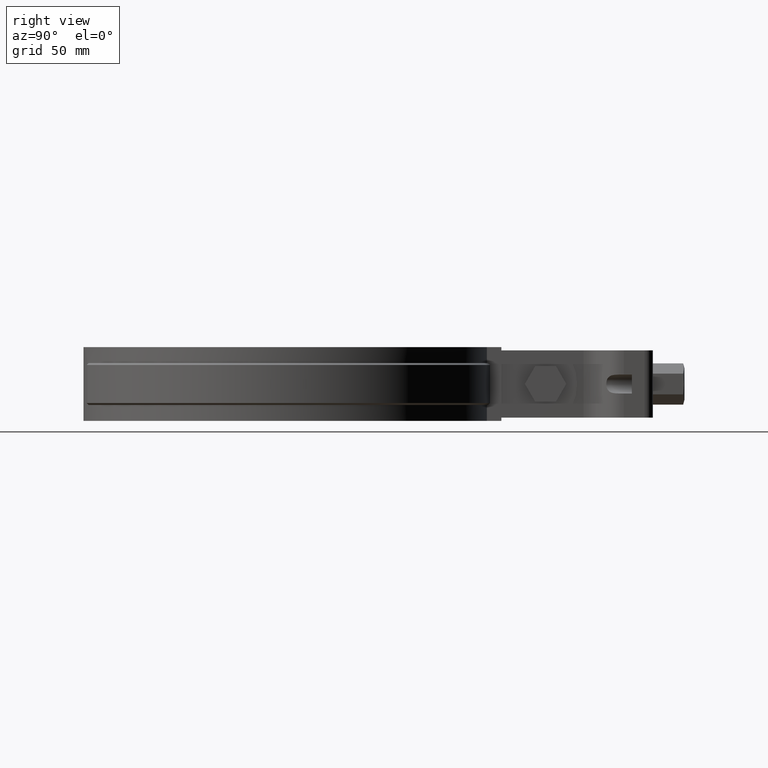
[diagram: clean part render]
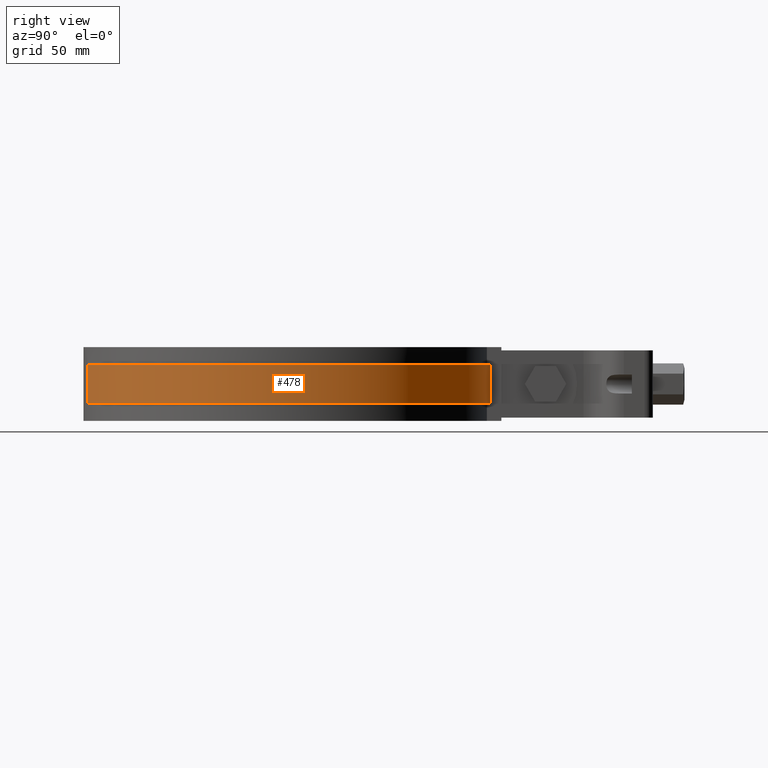
[diagram: same view with one face highlighted and labeled with its STEP entity id]
A machine part, right view. The second image highlights one B-rep face of the part: STEP entity #478.
In plain terms, the highlighted cylindrical surface (partial cylindrical patch) has radius 97.5 mm, axis along (0, 0, -1).
Its self-contained STEP definition (entity closure, byte-faithful):
#478 = ADVANCED_FACE( '', ( #854 ), #855, .T. );
#854 = FACE_OUTER_BOUND( '', #1989, .T. );
#855 = CYLINDRICAL_SURFACE( '', #1990, 97.5000000000000 );
#1989 = EDGE_LOOP( '', ( #4845, #4846, #4847, #4848 ) );
#1990 = AXIS2_PLACEMENT_3D( '', #4849, #4850, #4851 );
#4845 = ORIENTED_EDGE( '', *, *, #5382, .T. );
#4846 = ORIENTED_EDGE( '', *, *, #5398, .T. );
#4847 = ORIENTED_EDGE( '', *, *, #5411, .F. );
#4848 = ORIENTED_EDGE( '', *, *, #5388, .T. );
#4849 = CARTESIAN_POINT( '', ( 0.000000000000000, 0.000000000000000, -26.0000000000000 ) );
#4850 = DIRECTION( '', ( 0.000000000000000, 0.000000000000000, -1.00000000000000 ) );
#4851 = DIRECTION( '', ( 0.267217062849074, -0.963636363636364, 0.000000000000000 ) );
#5382 = EDGE_CURVE( '', #6145, #6146, #6147, .T. );
#5388 = EDGE_CURVE( '', #6154, #6145, #6155, .T. );
#5398 = EDGE_CURVE( '', #6146, #6167, #6170, .F. );
#5411 = EDGE_CURVE( '', #6154, #6167, #6187, .T. );
#6145 = VERTEX_POINT( '', #9456 );
#6146 = VERTEX_POINT( '', #9457 );
#6147 = LINE( '', #9458, #9459 );
#6154 = VERTEX_POINT( '', #9475 );
#6155 = CIRCLE( '', #9476, 97.5000000000000 );
#6167 = VERTEX_POINT( '', #9492 );
#6170 = CIRCLE( '', #9496, 97.5000000000000 );
#6187 = LINE( '', #9519, #9520 );
#9456 = CARTESIAN_POINT( '', ( 8.39999999999993, 97.1374798931906, -25.0000000000000 ) );
#9457 = CARTESIAN_POINT( '', ( 8.39999999999993, 97.1374798931906, -7.00000000000000 ) );
#9458 = CARTESIAN_POINT( '', ( 8.39999999999993, 97.1374798931906, -26.0000000000000 ) );
#9459 = VECTOR( '', #10160, 1000.00000000000 );
#9475 = CARTESIAN_POINT( '', ( 26.0536636277848, -93.9545454545455, -25.0000000000000 ) );
#9476 = AXIS2_PLACEMENT_3D( '', #10164, #10165, #10166 );
#9492 = CARTESIAN_POINT( '', ( 26.0536636277848, -93.9545454545455, -7.00000000000000 ) );
#9496 = AXIS2_PLACEMENT_3D( '', #10184, #10185, #10186 );
#9519 = CARTESIAN_POINT( '', ( 26.0536636277848, -93.9545454545455, -26.0000000000000 ) );
#9520 = VECTOR( '', #10211, 1000.00000000000 );
#10160 = DIRECTION( '', ( 0.000000000000000, 0.000000000000000, 1.00000000000000 ) );
#10164 = CARTESIAN_POINT( '', ( 0.000000000000000, 0.000000000000000, -25.0000000000000 ) );
#10165 = DIRECTION( '', ( 0.000000000000000, 0.000000000000000, 1.00000000000000 ) );
#10166 = DIRECTION( '', ( 1.00000000000000, 0.000000000000000, 0.000000000000000 ) );
#10184 = CARTESIAN_POINT( '', ( 0.000000000000000, 0.000000000000000, -7.00000000000000 ) );
#10185 = DIRECTION( '', ( 0.000000000000000, 0.000000000000000, 1.00000000000000 ) );
#10186 = DIRECTION( '', ( 1.00000000000000, 0.000000000000000, 0.000000000000000 ) );
#10211 = DIRECTION( '', ( 0.000000000000000, 0.000000000000000, 1.00000000000000 ) );